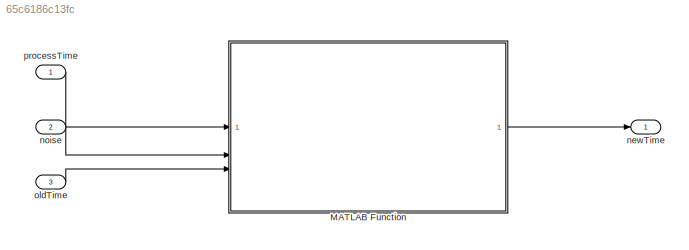
MODEL slx_65c6186c13fc
KIND model
CONFIG AbsTol = auto
CONFIG EnableMultiTasking = off
CONFIG FixedStep = auto
CONFIG MaxStep = auto
CONFIG MinStep = auto
CONFIG RelTol = 1e-3
CONFIG SampleTimeConstraint = Unconstrained
CONFIG SolverName = VariableStepAuto
CONFIG StartTime = 0.0
CONFIG StopTime = 10.0
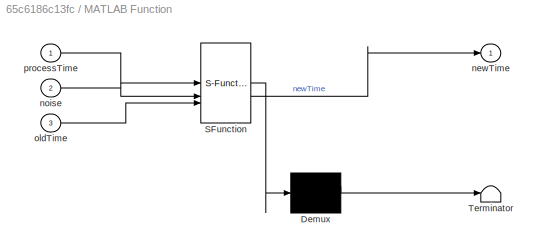
BLOCK [SubSystem] MATLAB Function
  ErrorFcn = Stateflow.Translate.translate
  PermitHierarchicalResolution = ExplicitOnly
  SFBlockType = MATLAB Function
  TreatAsAtomicUnit = on
BLOCK [Demux] MATLAB Function/ Demux 
  Outputs = 1
BLOCK [S-Function] MATLAB Function/ SFunction 
  EnableBusSupport = off
  FunctionName = sf_sfun
  PortCounts = [3 2]
  SFcnIsStateOwnerBlock = off
  SFunctionDeploymentMode = off
  Tag = Stateflow S-Function 2
BLOCK [Terminator] MATLAB Function/ Terminator 
BLOCK [Outport] MATLAB Function/newTime
BLOCK [Inport] MATLAB Function/noise
  Port = 2
BLOCK [Inport] MATLAB Function/oldTime
  Port = 3
BLOCK [Inport] MATLAB Function/processTime
BLOCK [Outport] newTime
BLOCK [Inport] noise
  Port = 2
BLOCK [Inport] oldTime
  Port = 3
BLOCK [Inport] processTime
LINE MATLAB Function:1 -> newTime:1
LINE noise:1 -> MATLAB Function:2
LINE oldTime:1 -> MATLAB Function:3
LINE processTime:1 -> MATLAB Function:1
CHART MATLAB Function states=1 transitions=1
  STATE_LABEL 'eML_blk_kernel()'
  STATE_LABEL 'SCRIPT:\nfunction newTime= Delay(processTime, noise, oldTime)\nif nargain<2\n    noise=0;\n    oldTime= 0;\nelseif nargin<3\n    oldTime=0;\nend\n\nif oldTime<0\n    newTime=-1\nelse\n    newTime= max(oldTime+processTime+noise, 0);\nend\n'
CHART  states=0 transitions=0
